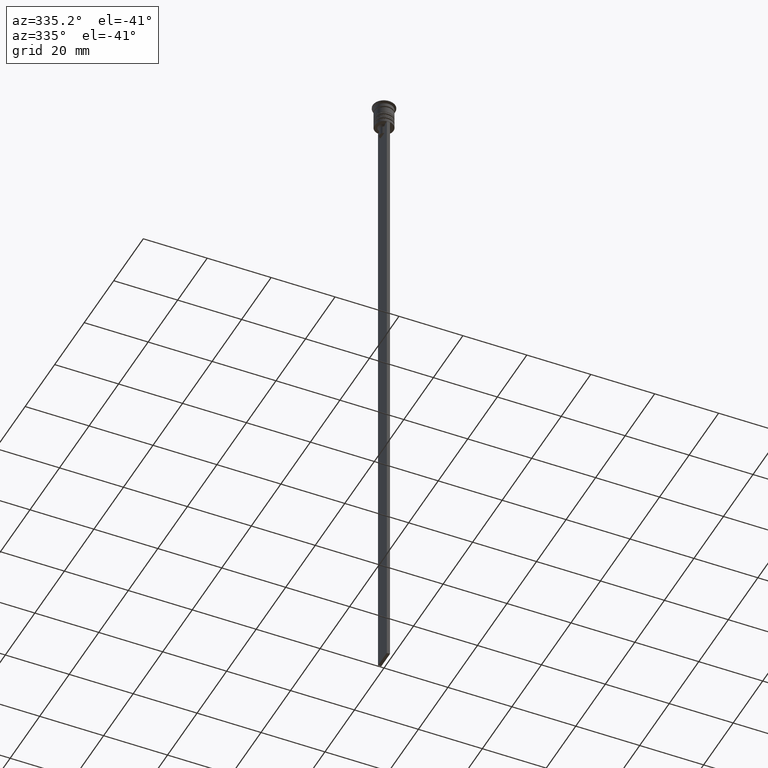
[diagram: clean part render]
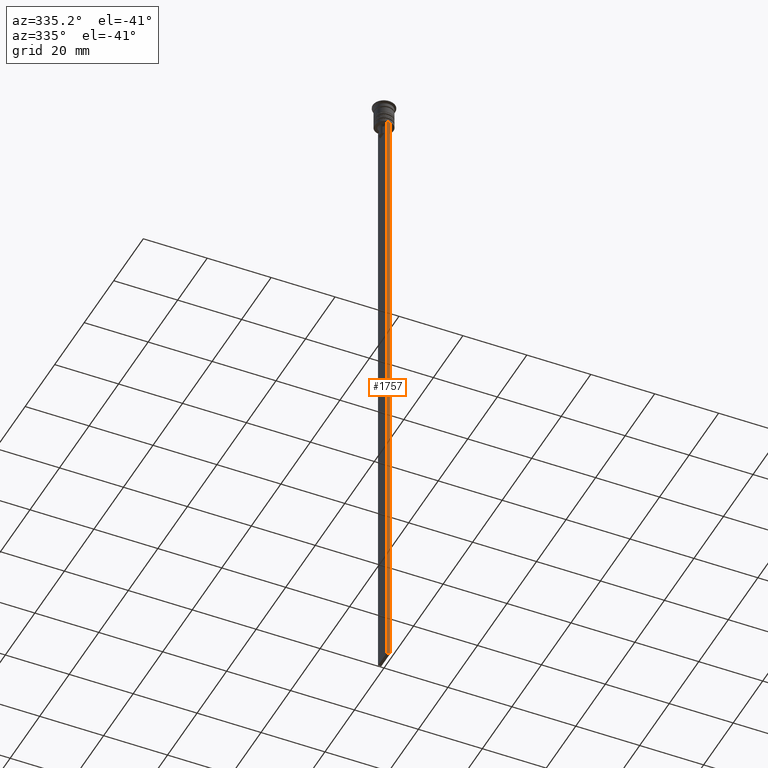
[diagram: same view with one face highlighted and labeled with its STEP entity id]
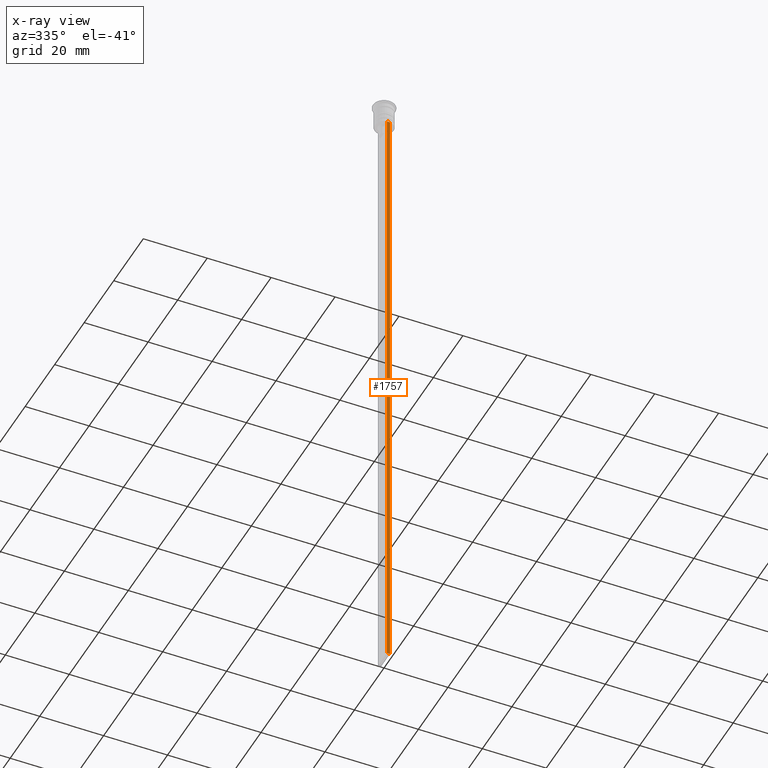
[diagram: x-ray of the same camera — body ghosted, the highlighted face saturated]
A machine part, auxiliary view. The second image highlights one B-rep face of the part: STEP entity #1757.
The next image is the same camera in x-ray: the body ghosted, the highlighted face saturated — about 0% of this face is hidden behind the body in this view.
In plain terms, the highlighted planar face has unit normal (0, -1, -0).
Its self-contained STEP definition (entity closure, byte-faithful):
#2 = VERTEX_POINT ( 'NONE', #1225 ) ;
#45 = VERTEX_POINT ( 'NONE', #2291 ) ;
#71 = DIRECTION ( 'NONE',  ( 0.000000000000000000, 0.000000000000000000, -1.000000000000000000 ) ) ;
#89 = ORIENTED_EDGE ( 'NONE', *, *, #1600, .F. ) ;
#106 = CARTESIAN_POINT ( 'NONE',  ( 0.4999999999999998890, -3.000000000000000000, -7.500000000000000000 ) ) ;
#292 = DIRECTION ( 'NONE',  ( 0.000000000000000000, 0.000000000000000000, -1.000000000000000000 ) ) ;
#380 = EDGE_LOOP ( 'NONE', ( #648, #2221, #1024, #89 ) ) ;
#403 = CARTESIAN_POINT ( 'NONE',  ( 0.4999999999999998890, -3.000000000000000000, -1.417237469701779329 ) ) ;
#448 = LINE ( 'NONE', #982, #1104 ) ;
#519 = LINE ( 'NONE', #703, #1285 ) ;
#648 = ORIENTED_EDGE ( 'NONE', *, *, #2173, .F. ) ;
#703 = CARTESIAN_POINT ( 'NONE',  ( 0.4999999999999998890, -3.000000000000000000, -207.5000000000000284 ) ) ;
#845 = DIRECTION ( 'NONE',  ( 1.000000000000000000, 0.000000000000000000, 0.000000000000000000 ) ) ;
#982 = CARTESIAN_POINT ( 'NONE',  ( 0.4999999999999998890, -3.000000000000000000, -7.500000000000000000 ) ) ;
#1024 = ORIENTED_EDGE ( 'NONE', *, *, #1507, .F. ) ;
#1035 = DIRECTION ( 'NONE',  ( -1.000000000000000000, 0.000000000000000000, 0.000000000000000000 ) ) ;
#1104 = VECTOR ( 'NONE', #845, 1000.000000000000000 ) ;
#1176 = VECTOR ( 'NONE', #71, 1000.000000000000000 ) ;
#1225 = CARTESIAN_POINT ( 'NONE',  ( 0.4999999999999998890, -3.000000000000000000, -207.5000000000000284 ) ) ;
#1285 = VECTOR ( 'NONE', #1035, 1000.000000000000000 ) ;
#1352 = DIRECTION ( 'NONE',  ( 0.000000000000000000, -1.000000000000000000, -0.000000000000000000 ) ) ;
#1502 = LINE ( 'NONE', #1718, #1593 ) ;
#1507 = EDGE_CURVE ( 'NONE', #2, #45, #519, .T. ) ;
#1593 = VECTOR ( 'NONE', #2260, 1000.000000000000000 ) ;
#1600 = EDGE_CURVE ( 'NONE', #1703, #2, #2023, .T. ) ;
#1636 = AXIS2_PLACEMENT_3D ( 'NONE', #1886, #1352, #292 ) ;
#1694 = CARTESIAN_POINT ( 'NONE',  ( -0.5000000000000001110, -3.000000000000000000, -7.500000000000000000 ) ) ;
#1703 = VERTEX_POINT ( 'NONE', #106 ) ;
#1717 = VERTEX_POINT ( 'NONE', #1694 ) ;
#1718 = CARTESIAN_POINT ( 'NONE',  ( -0.5000000000000001110, -3.000000000000000000, -1.417237469701779329 ) ) ;
#1757 = ADVANCED_FACE ( 'NONE', ( #2063 ), #1871, .T. ) ;
#1858 = EDGE_CURVE ( 'NONE', #1717, #45, #1502, .T. ) ;
#1871 = PLANE ( 'NONE',  #1636 ) ;
#1886 = CARTESIAN_POINT ( 'NONE',  ( 0.4999999999999998890, -3.000000000000000000, -1.417237469701779329 ) ) ;
#2023 = LINE ( 'NONE', #403, #1176 ) ;
#2063 = FACE_OUTER_BOUND ( 'NONE', #380, .T. ) ;
#2173 = EDGE_CURVE ( 'NONE', #1717, #1703, #448, .T. ) ;
#2221 = ORIENTED_EDGE ( 'NONE', *, *, #1858, .T. ) ;
#2260 = DIRECTION ( 'NONE',  ( 0.000000000000000000, 0.000000000000000000, -1.000000000000000000 ) ) ;
#2291 = CARTESIAN_POINT ( 'NONE',  ( -0.5000000000000001110, -3.000000000000000000, -207.5000000000000284 ) ) ;